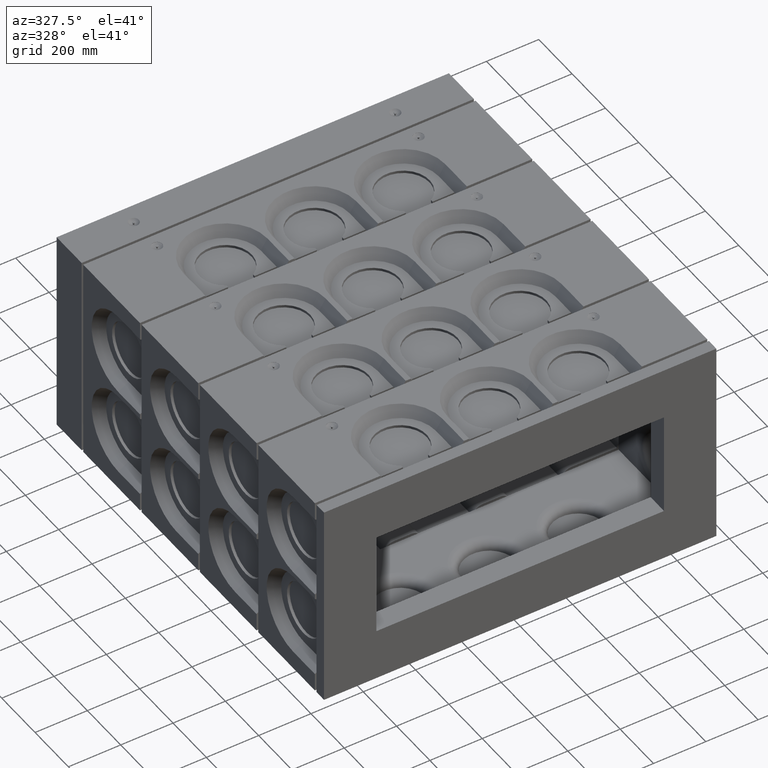
[diagram: clean part render]
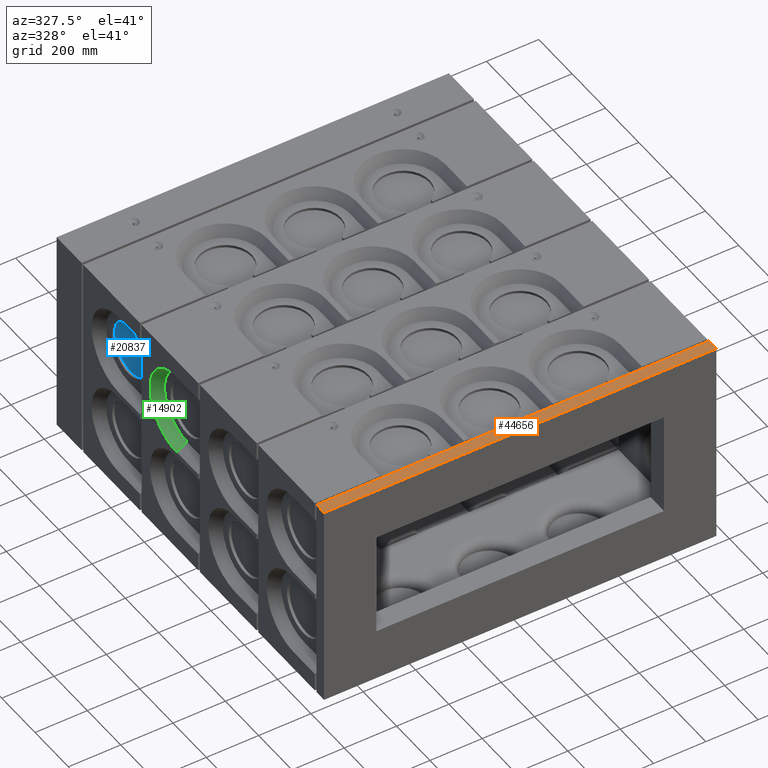
[diagram: same view with three faces highlighted in distinct colors, each labeled with its STEP entity id]
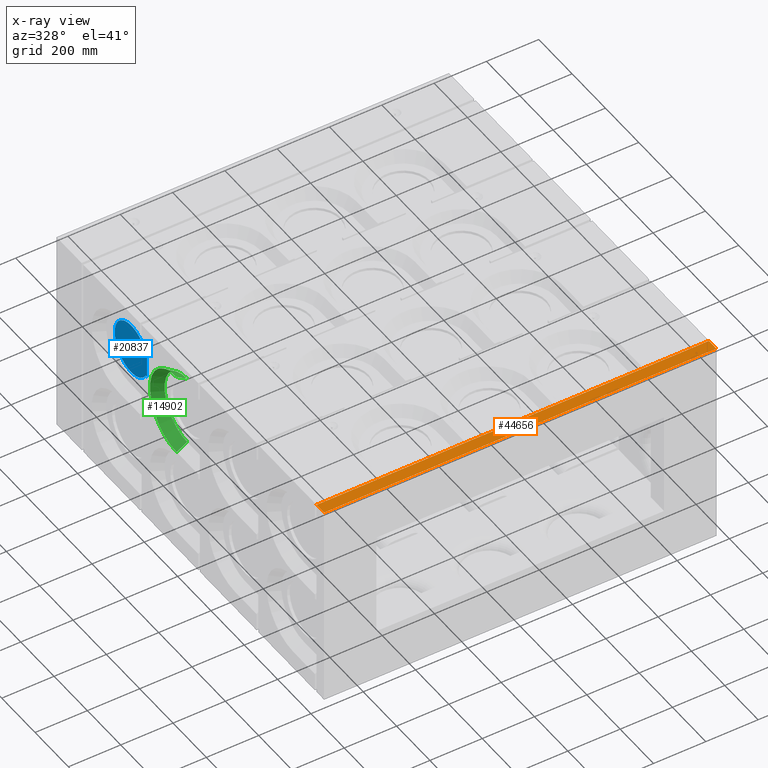
[diagram: x-ray of the same camera — body ghosted, the three highlighted faces saturated]
A machine part, auxiliary view with three faces highlighted in distinct colors.
The next image is the same camera in x-ray (body ghosted, the three faces saturated) — at least one of them is partly hidden behind the body in this view.
Their STEP definitions:

[orange] entity #44656 — the highlighted planar face has unit normal (0, 0, -1).
#267 = VECTOR ( 'NONE', #45714, 1000.000000000000000 ) ;
#1901 = VECTOR ( 'NONE', #10189, 1000.000000000000000 ) ;
#3518 = EDGE_CURVE ( 'NONE', #29971, #31404, #45351, .T. ) ;
#4517 = FACE_OUTER_BOUND ( 'NONE', #18617, .T. ) ;
#5254 = LINE ( 'NONE', #38133, #11524 ) ;
#6808 = EDGE_CURVE ( 'NONE', #31404, #36256, #5254, .T. ) ;
#7829 = ORIENTED_EDGE ( 'NONE', *, *, #47785, .T. ) ;
#10007 = ORIENTED_EDGE ( 'NONE', *, *, #43636, .F. ) ;
#10189 = DIRECTION ( 'NONE',  ( -0.0000000000000000000, -1.000000000000000000, -0.0000000000000000000 ) ) ;
#11524 = VECTOR ( 'NONE', #33815, 1000.000000000000000 ) ;
#13937 = CARTESIAN_POINT ( 'NONE',  ( -750.0000000000000000, 0.0000000000000000000, 400.0000000000000000 ) ) ;
#14083 = CARTESIAN_POINT ( 'NONE',  ( -750.0000000000000000, 45.00000000000000000, 400.0000000000000000 ) ) ;
#14115 = DIRECTION ( 'NONE',  ( 1.000000000000000000, 0.0000000000000000000, 0.0000000000000000000 ) ) ;
#17126 = LINE ( 'NONE', #14083, #267 ) ;
#17907 = CARTESIAN_POINT ( 'NONE',  ( -750.0000000000000000, 45.00000000000000000, 400.0000000000000000 ) ) ;
#18332 = PLANE ( 'NONE',  #42539 ) ;
#18504 = DIRECTION ( 'NONE',  ( 0.0000000000000000000, 0.0000000000000000000, -1.000000000000000000 ) ) ;
#18617 = EDGE_LOOP ( 'NONE', ( #10007, #7829, #39985, #31360 ) ) ;
#21823 = VERTEX_POINT ( 'NONE', #17907 ) ;
#27022 = CARTESIAN_POINT ( 'NONE',  ( 750.0000000000000000, 0.0000000000000000000, 400.0000000000000000 ) ) ;
#29971 = VERTEX_POINT ( 'NONE', #30114 ) ;
#30114 = CARTESIAN_POINT ( 'NONE',  ( -750.0000000000000000, 0.0000000000000000000, 400.0000000000000000 ) ) ;
#31360 = ORIENTED_EDGE ( 'NONE', *, *, #6808, .T. ) ;
#31404 = VERTEX_POINT ( 'NONE', #27022 ) ;
#33815 = DIRECTION ( 'NONE',  ( 0.0000000000000000000, 1.000000000000000000, 0.0000000000000000000 ) ) ;
#34146 = CARTESIAN_POINT ( 'NONE',  ( -750.0000000000000000, 0.0000000000000000000, 400.0000000000000000 ) ) ;
#34224 = DIRECTION ( 'NONE',  ( -1.000000000000000000, 0.0000000000000000000, -0.0000000000000000000 ) ) ;
#34722 = VECTOR ( 'NONE', #14115, 1000.000000000000000 ) ;
#36256 = VERTEX_POINT ( 'NONE', #49253 ) ;
#38133 = CARTESIAN_POINT ( 'NONE',  ( 750.0000000000000000, 0.0000000000000000000, 400.0000000000000000 ) ) ;
#39985 = ORIENTED_EDGE ( 'NONE', *, *, #3518, .T. ) ;
#42232 = CARTESIAN_POINT ( 'NONE',  ( -750.0000000000000000, 80.00000000000000000, 400.0000000000000000 ) ) ;
#42539 = AXIS2_PLACEMENT_3D ( 'NONE', #42232, #18504, #34224 ) ;
#43636 = EDGE_CURVE ( 'NONE', #21823, #36256, #17126, .T. ) ;
#44656 = ADVANCED_FACE ( 'NONE', ( #4517 ), #18332, .F. ) ;
#45351 = LINE ( 'NONE', #13937, #34722 ) ;
#45714 = DIRECTION ( 'NONE',  ( 1.000000000000000000, -0.0000000000000000000, 0.0000000000000000000 ) ) ;
#47785 = EDGE_CURVE ( 'NONE', #21823, #29971, #51379, .T. ) ;
#49253 = CARTESIAN_POINT ( 'NONE',  ( 750.0000000000000000, 45.00000000000000000, 400.0000000000000000 ) ) ;
#51379 = LINE ( 'NONE', #34146, #1901 ) ;

[blue] entity #20837 — the highlighted planar face has unit normal (-1, -0, 0).
#1367 = LINE ( 'NONE', #34397, #2038 ) ;
#2038 = VECTOR ( 'NONE', #2224, 1000.000000000000000 ) ;
#2224 = DIRECTION ( 'NONE',  ( -6.419766481290788001E-33, 1.000000000000000000, -9.251858538542972814E-17 ) ) ;
#3523 = VECTOR ( 'NONE', #41912, 1000.000000000000000 ) ;
#3774 = ORIENTED_EDGE ( 'NONE', *, *, #38801, .T. ) ;
#7600 = CARTESIAN_POINT ( 'NONE',  ( -700.0000000000003411, 1148.982559907888344, 119.0000000000004690 ) ) ;
#9961 = CARTESIAN_POINT ( 'NONE',  ( -700.0000000000003411, 1148.982559907888344, 221.0000000000004832 ) ) ;
#13609 = EDGE_LOOP ( 'NONE', ( #3774, #38758, #33718, #49856 ) ) ;
#14701 = DIRECTION ( 'NONE',  ( 1.734723475976807711E-17, -4.996003610813204432E-16, 1.000000000000000000 ) ) ;
#15262 = CARTESIAN_POINT ( 'NONE',  ( -700.0000000000003411, 1235.000000000000000, 170.0000000000004832 ) ) ;
#18505 = VERTEX_POINT ( 'NONE', #48561 ) ;
#18908 = CARTESIAN_POINT ( 'NONE',  ( -700.0000000000003411, 1235.000000000000000, 170.0000000000004832 ) ) ;
#20837 = ADVANCED_FACE ( 'NONE', ( #32428 ), #46528, .T. ) ;
#21419 = CARTESIAN_POINT ( 'NONE',  ( -700.0000000000003411, 1140.000000000000227, 119.0000000000004690 ) ) ;
#23938 = VERTEX_POINT ( 'NONE', #21419 ) ;
#24556 = EDGE_CURVE ( 'NONE', #31158, #23938, #36630, .T. ) ;
#26060 = CIRCLE ( 'NONE', #39400, 99.99999999999997158 ) ;
#31145 = AXIS2_PLACEMENT_3D ( 'NONE', #18908, #46856, #14701 ) ;
#31158 = VERTEX_POINT ( 'NONE', #32856 ) ;
#31429 = DIRECTION ( 'NONE',  ( -1.881626355904905735E-48, -1.000000000000000000, -2.775557561562891351E-16 ) ) ;
#32428 = FACE_OUTER_BOUND ( 'NONE', #13609, .T. ) ;
#32856 = CARTESIAN_POINT ( 'NONE',  ( -700.0000000000003411, 1148.982559907888344, 119.0000000000004690 ) ) ;
#33718 = ORIENTED_EDGE ( 'NONE', *, *, #42026, .T. ) ;
#34397 = CARTESIAN_POINT ( 'NONE',  ( -700.0000000000003411, 1148.982559907888344, 221.0000000000004832 ) ) ;
#36630 = LINE ( 'NONE', #7600, #46691 ) ;
#38219 = VERTEX_POINT ( 'NONE', #9961 ) ;
#38758 = ORIENTED_EDGE ( 'NONE', *, *, #44655, .T. ) ;
#38801 = EDGE_CURVE ( 'NONE', #23938, #18505, #39770, .T. ) ;
#39400 = AXIS2_PLACEMENT_3D ( 'NONE', #15262, #51128, #42493 ) ;
#39770 = LINE ( 'NONE', #41565, #3523 ) ;
#41565 = CARTESIAN_POINT ( 'NONE',  ( -700.0000000000003411, 1140.000000000000455, -361.4999999999995453 ) ) ;
#41912 = DIRECTION ( 'NONE',  ( 1.734723475976807711E-17, -4.996003610813204432E-16, 1.000000000000000000 ) ) ;
#42026 = EDGE_CURVE ( 'NONE', #38219, #31158, #26060, .T. ) ;
#42493 = DIRECTION ( 'NONE',  ( 0.0000000000000000000, 0.0000000000000000000, 1.000000000000000000 ) ) ;
#44655 = EDGE_CURVE ( 'NONE', #18505, #38219, #1367, .T. ) ;
#46528 = PLANE ( 'NONE',  #31145 ) ;
#46691 = VECTOR ( 'NONE', #31429, 1000.000000000000000 ) ;
#46856 = DIRECTION ( 'NONE',  ( -1.000000000000000000, -8.474091755303836385E-33, 1.734723475976807711E-17 ) ) ;
#48561 = CARTESIAN_POINT ( 'NONE',  ( -700.0000000000003411, 1140.000000000000227, 221.0000000000004832 ) ) ;
#49856 = ORIENTED_EDGE ( 'NONE', *, *, #24556, .T. ) ;
#51128 = DIRECTION ( 'NONE',  ( -1.000000000000000000, -8.474091755303837753E-33, 1.734723475976808019E-17 ) ) ;

[green] entity #14902 — the highlighted conical surface has half-angle 32 deg.
#1972 = DIRECTION ( 'NONE',  ( -0.8480480961564252906, -1.912067847118414047E-16, 0.5299192642332060110 ) ) ;
#2145 = CARTESIAN_POINT ( 'NONE',  ( -710.0000000000003411, 885.0000000000002274, 34.99477407637363768 ) ) ;
#2376 = EDGE_CURVE ( 'NONE', #51571, #28398, #23095, .T. ) ;
#4419 = DIRECTION ( 'NONE',  ( -1.000000000000000000, -8.474091755303837753E-33, 1.734723475976808019E-17 ) ) ;
#7784 = CONICAL_SURFACE ( 'NONE', #9826, 159.9999999999999716, 0.5585053606381866764 ) ;
#9826 = AXIS2_PLACEMENT_3D ( 'NONE', #24406, #4419, #44803 ) ;
#10873 = EDGE_CURVE ( 'NONE', #13711, #28398, #21414, .T. ) ;
#13444 = AXIS2_PLACEMENT_3D ( 'NONE', #23049, #47267, #31219 ) ;
#13711 = VERTEX_POINT ( 'NONE', #2145 ) ;
#13864 = CARTESIAN_POINT ( 'NONE',  ( -750.0000000000003411, 885.0000000000000000, 330.0000000000003979 ) ) ;
#14569 = DIRECTION ( 'NONE',  ( -1.000000000000000000, -8.474091755303837753E-33, 1.734723475976808019E-17 ) ) ;
#14902 = ADVANCED_FACE ( 'NONE', ( #23539 ), #7784, .F. ) ;
#19851 = CARTESIAN_POINT ( 'NONE',  ( -750.0000000000003411, 885.0000000000001137, 10.00000000000045297 ) ) ;
#21414 = LINE ( 'NONE', #23187, #43228 ) ;
#23049 = CARTESIAN_POINT ( 'NONE',  ( -710.0000000000003411, 885.0000000000000000, 170.0000000000004263 ) ) ;
#23087 = AXIS2_PLACEMENT_3D ( 'NONE', #26499, #14569, #42161 ) ;
#23095 = CIRCLE ( 'NONE', #23087, 159.9999999999999716 ) ;
#23187 = CARTESIAN_POINT ( 'NONE',  ( -750.0000000000003411, 885.0000000000002274, 10.00000000000045297 ) ) ;
#23539 = FACE_OUTER_BOUND ( 'NONE', #42496, .T. ) ;
#23771 = LINE ( 'NONE', #13864, #43695 ) ;
#23866 = CARTESIAN_POINT ( 'NONE',  ( -750.0000000000003411, 885.0000000000000000, 330.0000000000003979 ) ) ;
#24214 = ORIENTED_EDGE ( 'NONE', *, *, #45861, .F. ) ;
#24395 = ORIENTED_EDGE ( 'NONE', *, *, #40691, .T. ) ;
#24406 = CARTESIAN_POINT ( 'NONE',  ( -750.0000000000003411, 885.0000000000000000, 170.0000000000004263 ) ) ;
#26499 = CARTESIAN_POINT ( 'NONE',  ( -750.0000000000003411, 885.0000000000000000, 170.0000000000004263 ) ) ;
#28398 = VERTEX_POINT ( 'NONE', #19851 ) ;
#31219 = DIRECTION ( 'NONE',  ( 0.0000000000000000000, -8.223555918148055943E-16, 1.000000000000000000 ) ) ;
#31375 = VERTEX_POINT ( 'NONE', #38144 ) ;
#36061 = ORIENTED_EDGE ( 'NONE', *, *, #10873, .F. ) ;
#38144 = CARTESIAN_POINT ( 'NONE',  ( -710.0000000000003411, 885.0000000000000000, 305.0052259236272221 ) ) ;
#39527 = DIRECTION ( 'NONE',  ( -0.8480480961564252906, 3.566741945586272152E-16, -0.5299192642332060110 ) ) ;
#40691 = EDGE_CURVE ( 'NONE', #31375, #51571, #23771, .T. ) ;
#42161 = DIRECTION ( 'NONE',  ( 0.0000000000000000000, -6.938893903907229364E-16, 1.000000000000000000 ) ) ;
#42496 = EDGE_LOOP ( 'NONE', ( #51790, #36061, #24214, #24395 ) ) ;
#43228 = VECTOR ( 'NONE', #39527, 1000.000000000000114 ) ;
#43695 = VECTOR ( 'NONE', #1972, 1000.000000000000114 ) ;
#44803 = DIRECTION ( 'NONE',  ( 0.0000000000000000000, -6.938893903907229364E-16, 1.000000000000000000 ) ) ;
#45861 = EDGE_CURVE ( 'NONE', #31375, #13711, #51911, .T. ) ;
#47267 = DIRECTION ( 'NONE',  ( -1.000000000000000000, -8.474091755303837753E-33, 1.734723475976808019E-17 ) ) ;
#51571 = VERTEX_POINT ( 'NONE', #23866 ) ;
#51790 = ORIENTED_EDGE ( 'NONE', *, *, #2376, .T. ) ;
#51911 = CIRCLE ( 'NONE', #13444, 135.0052259236267957 ) ;